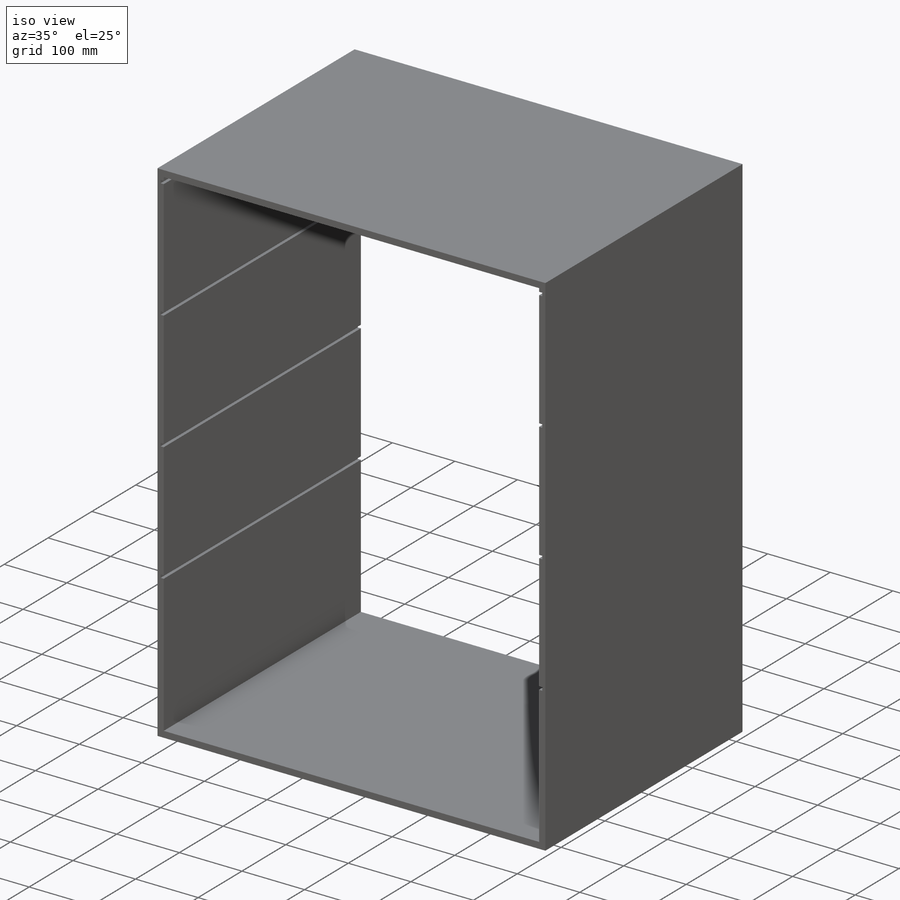
[diagram: iso view]
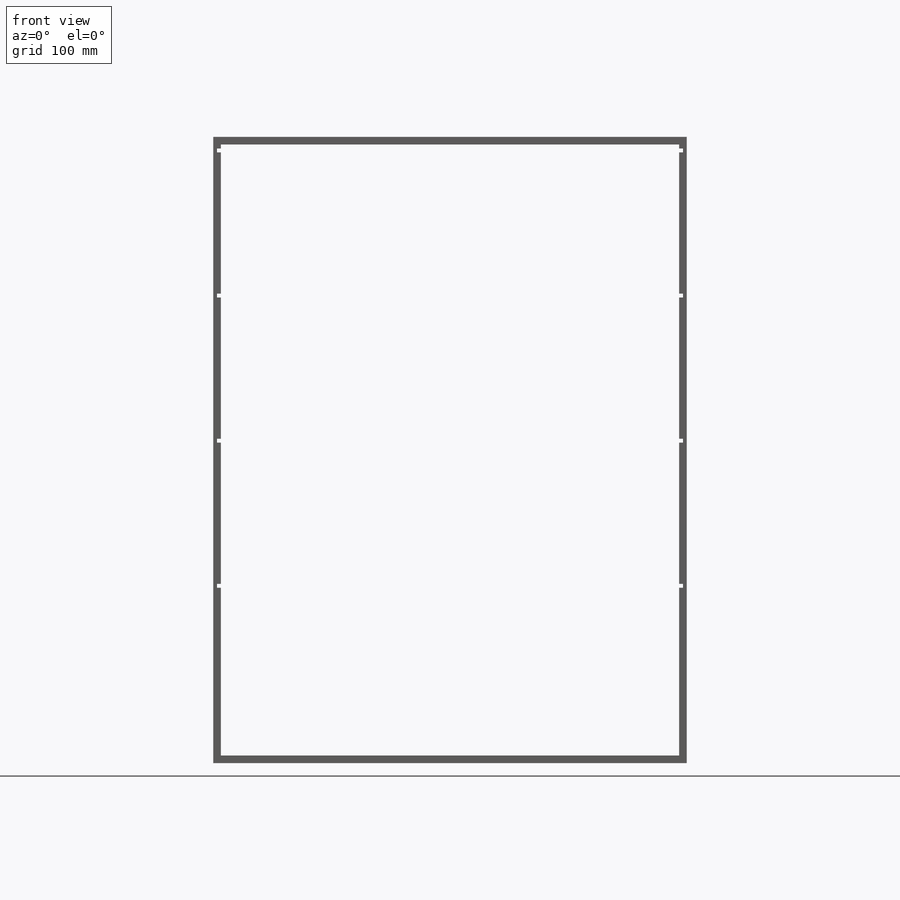
[diagram: front view]
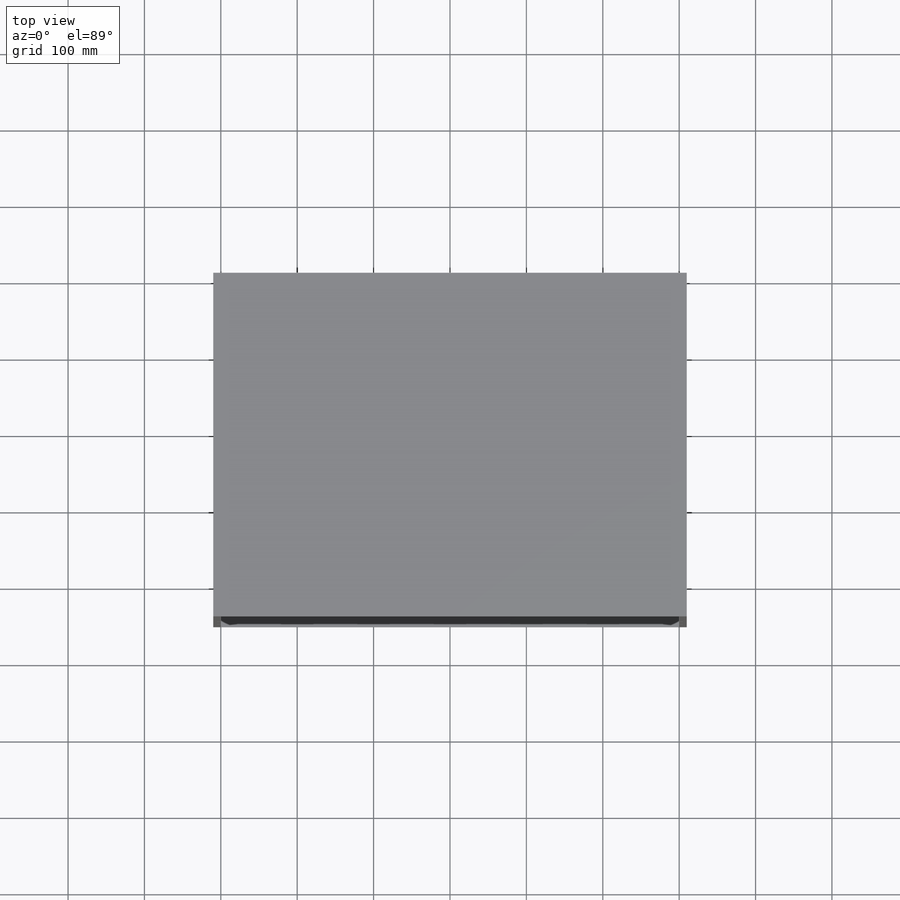
[diagram: top view]
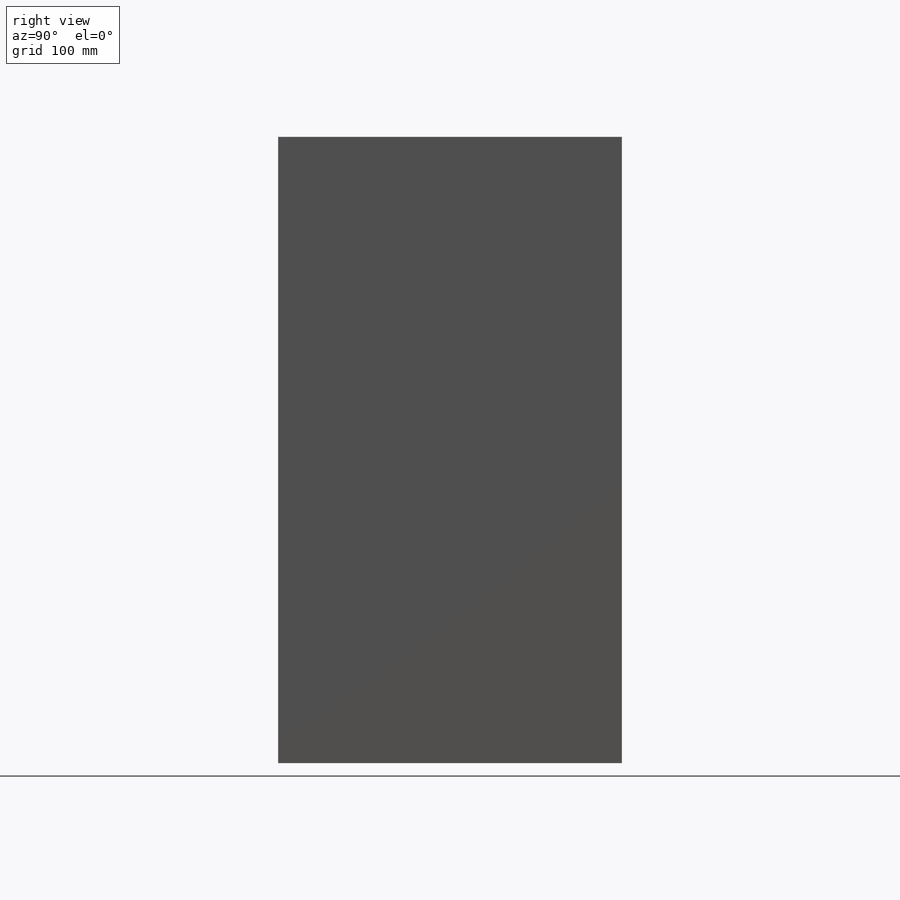
[diagram: right view]
SOLIDWORKS PART (.sldprt)
format: sldprt  version: not decoded by parser v0  size: 194,048 bytes
history: native  units: mm
features: sketch x3, cut_extrude x2, material x1, plane x1 (+11 scaffold rows collapsed)
feature tree (18):
  scaffold x11  (default folders/planes/origin — collapsed)
  material  "Material <not specified>"
  sketch  "Sketch1"  dims[c1.D1=800.0mm c2.D1=450.0mm c2.D5=10.0mm c2.D6=10.0mm c2.D7=5.0mm]
  sketch  "Sketch2"  dims[c1.D1=5.0mm c1.D2=5.0mm c2.D1=4.0]
  cut_extrude  "Cut-Extrude1"  Depth=1000mm
  plane  "Plane1"  Offset=0mm
  sketch  "Sketch3"  dims[D1=50.0mm]
  cut_extrude  "Cut-Extrude2"  Depth=3mm
decode coverage: 5 of 5 modeling features carry decoded parameters
note: suppression state not decoded; provenance and decode notes live in map.json
